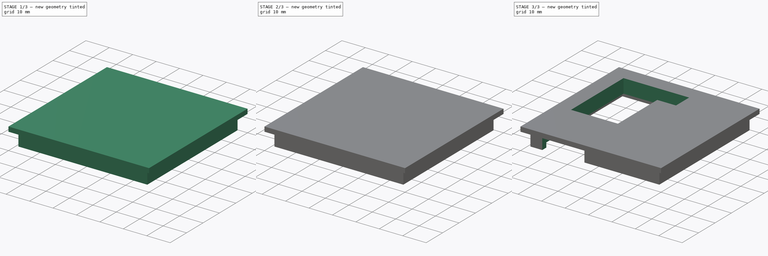
[diagram: build sequence overview — one tinted view per stage of 3, left to right]
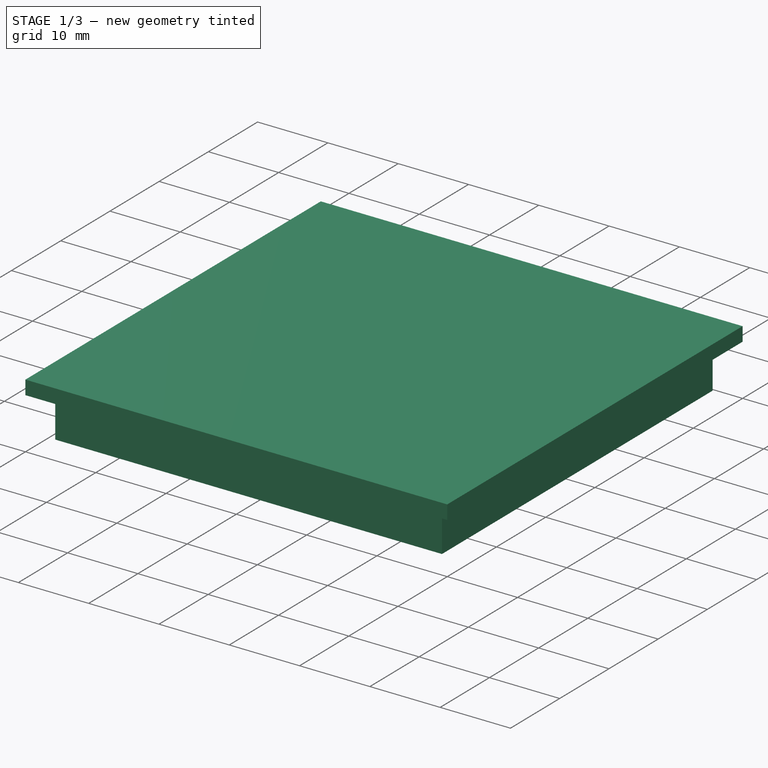
[diagram: stage 1 of 3 — iso view after this stage's code; geometry added in this stage tinted green]
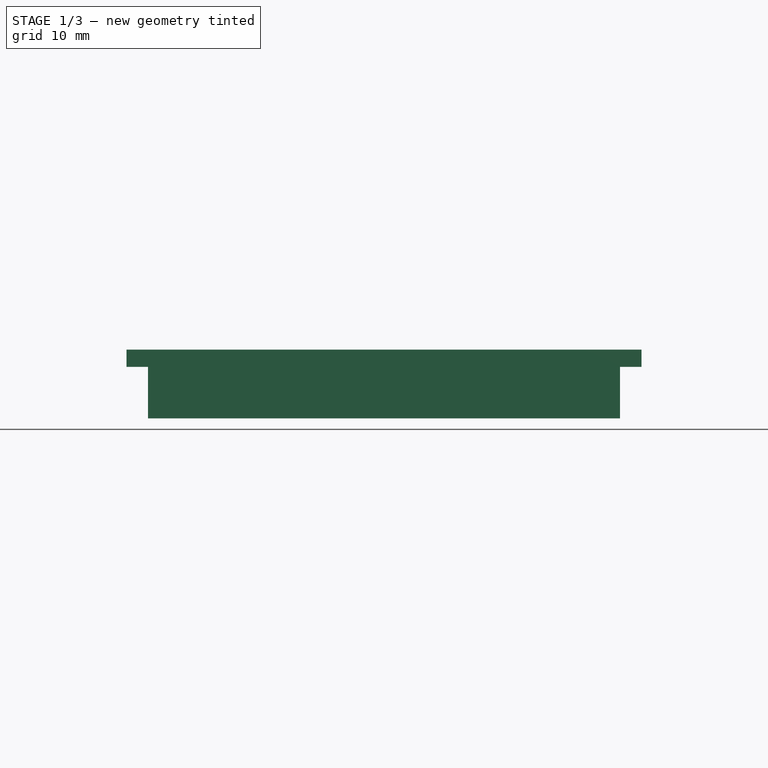
[diagram: stage 1 of 3 — front view after this stage's code; geometry added in this stage tinted green]
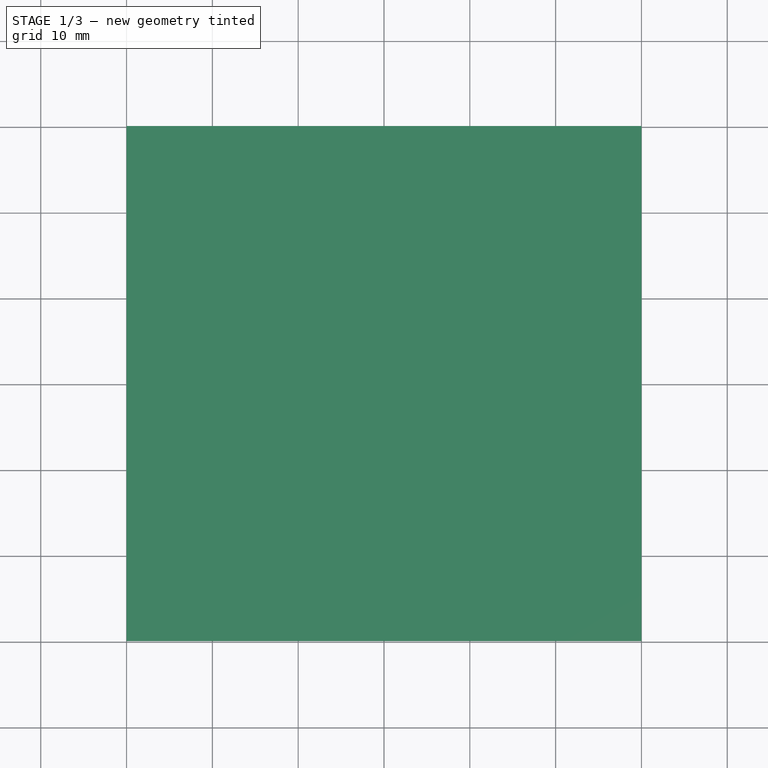
[diagram: stage 1 of 3 — top view after this stage's code; geometry added in this stage tinted green]
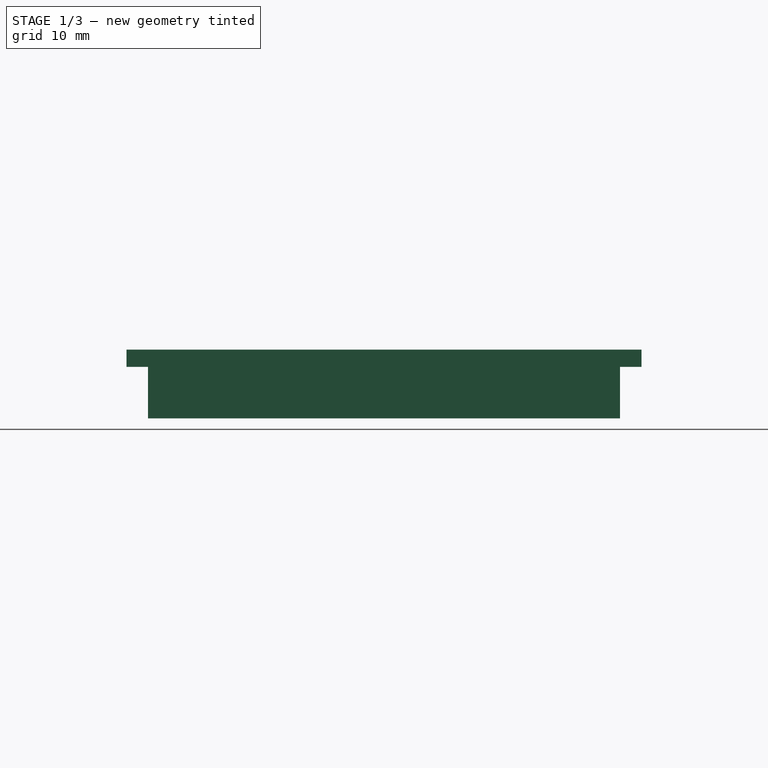
[diagram: stage 1 of 3 — right view after this stage's code; geometry added in this stage tinted green]
FCSTD DOCUMENT  (FreeCAD 0.20R29410 (Git))
Label: Sensor_Verteiler_V10
License: All rights reserved
LicenseURL: http://en.wikipedia.org/wiki/All_rights_reserved
objects: Sketcher::SketchObject×6, PartDesign::Plane×4, PartDesign::Pocket×4, PartDesign::Pad×2, App::MeasureDistance×2, Spreadsheet::Sheet×1, PartDesign::Body×1
note: 23 computed .brp shape members not serialized (recipe doc carries the construction recipe); baked Part::Feature solids carry a one-line shape summary decoded from their .brp

FEATURE [Sketcher::SketchObject] Sketch
  FullyConstrained = true
  MapMode = 5
  Support = -> [XY_Plane]
  expr: Constraints[10] = <<Parameter>>.Oberteil_Breite_Komplett + <<Parameter>>.Oberteil_Rand_Komplett * 2
  expr: Constraints[9] = <<Parameter>>.Oberteil_Tiefe_Komplett + <<Parameter>>.Oberteil_Rand_Komplett * 2
  sketch-geometry (4):
    g0: LineSegment StartX=0 StartY=0 StartZ=0 EndX=60 EndY=0 EndZ=0
    g1: LineSegment StartX=60 StartY=0 StartZ=0 EndX=60 EndY=60 EndZ=0
    g2: LineSegment StartX=60 StartY=60 StartZ=0 EndX=0 EndY=60 EndZ=0
    g3: LineSegment StartX=0 StartY=60 StartZ=0 EndX=0 EndY=0 EndZ=0
  constraints (11):
    c: Coincident(g0,g1)
    c: Coincident(g1,g2)
    c: Coincident(g2,g3)
    c: Coincident(g3,g0)
    c: Horizontal(g0)
    c: Horizontal(g2)
    c: Vertical(g1)
    c: Vertical(g3)
    c: Coincident(g0,g-1)
    c: DistanceY(g0,g1) = 60
    c: DistanceX(g2,g1) = 60
FEATURE [Spreadsheet::Sheet] Spreadsheet  label="Parameter"
  cells = A1=Breite in mm; B1(Oberteil_Breite_Komplett)=50; A2=Tiefe in mm; B2(Oberteil_Tiefe_Komplett)=50; A3=Rand; B3(Oberteil_Rand_Komplett)=5
FEATURE [PartDesign::Pad] Pad  label="Oberteil"
  Direction = (0,0,1)
  Length = 2
  Length2 = 10
  Profile = -> Sketch
  ReferenceAxis = -> Sketch [N_Axis]
  Type = 0
FEATURE [PartDesign::Plane] DatumPlane  label="Unterseite"
  Length = 60
  MapMode = 5
  Placement = pos=(0,0,0) rot=(1,0,0;3.14159rad)
  ResizeMode = 0
  Support = -> [Pad]
  Width = 60
FEATURE [Sketcher::SketchObject] Sketch001
  FullyConstrained = true
  MapMode = 5
  Placement = pos=(0,0,0) rot=(1,0,0;3.14159rad)
  Support = -> [DatumPlane]
  expr: Constraints[10] = <<Parameter>>.Oberteil_Breite_Komplett + <<Parameter>>.Oberteil_Rand_Komplett
  expr: Constraints[11] = <<Parameter>>.Oberteil_Tiefe_Komplett + <<Parameter>>.Oberteil_Rand_Komplett
  expr: Constraints[8] = <<Parameter>>.Oberteil_Rand_Komplett / 2
  expr: Constraints[9] = <<Parameter>>.Oberteil_Rand_Komplett / 2
  sketch-geometry (4):
    g0: LineSegment StartX=2.5 StartY=-2.5 StartZ=0 EndX=57.5 EndY=-2.5 EndZ=0
    g1: LineSegment StartX=57.5 StartY=-2.5 StartZ=0 EndX=57.5 EndY=-57.5 EndZ=0
    g2: LineSegment StartX=57.5 StartY=-57.5 StartZ=0 EndX=2.5 EndY=-57.5 EndZ=0
    g3: LineSegment StartX=2.5 StartY=-57.5 StartZ=0 EndX=2.5 EndY=-2.5 EndZ=0
  constraints (12):
    c: Coincident(g0,g1)
    c: Coincident(g1,g2)
    c: Coincident(g2,g3)
    c: Coincident(g3,g0)
    c: Horizontal(g0)
    c: Horizontal(g2)
    c: Vertical(g1)
    c: Vertical(g3)
    c: DistanceY(g0,g-1) = 2.5
    c: DistanceX(g-1,g0) = 2.5
    c: DistanceX(g0,g0) = 55
    c: DistanceY(g1,g0) = 55
FEATURE [PartDesign::Pad] Pad001  label="Rand"
  BaseFeature = -> Pad
  Direction = (0,0,-1)
  Length = 6
  Length2 = 10
  Profile = -> Sketch001
  ReferenceAxis = -> Sketch001 [N_Axis]
  Type = 0
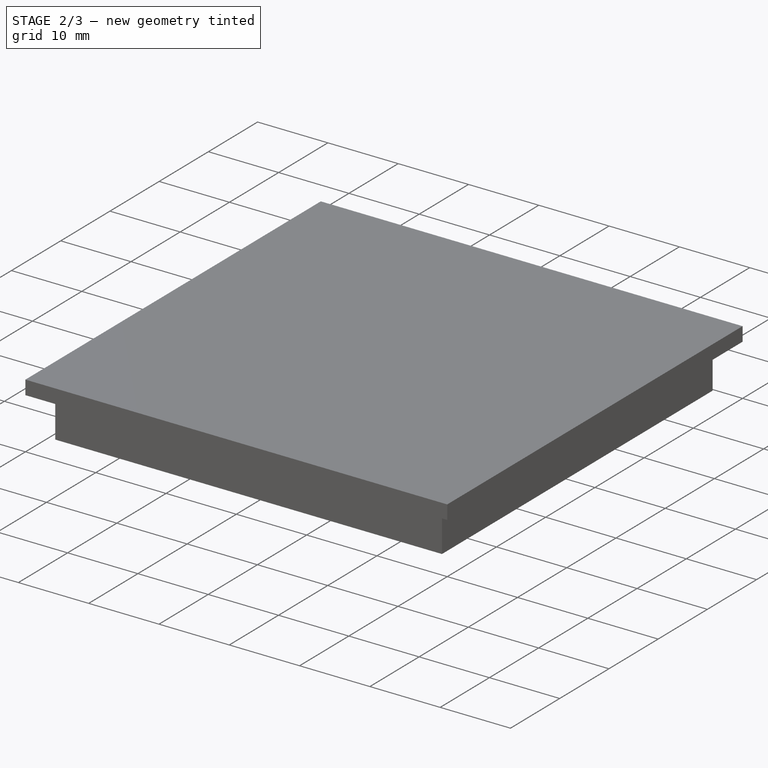
[diagram: stage 2 of 3 — iso view after this stage's code; geometry added in this stage tinted green]
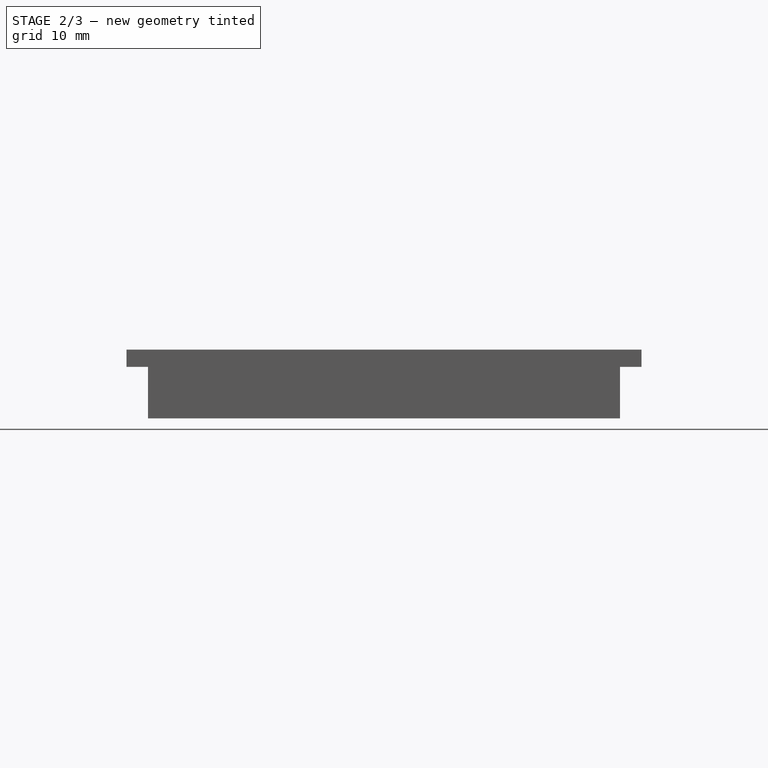
[diagram: stage 2 of 3 — front view after this stage's code; geometry added in this stage tinted green]
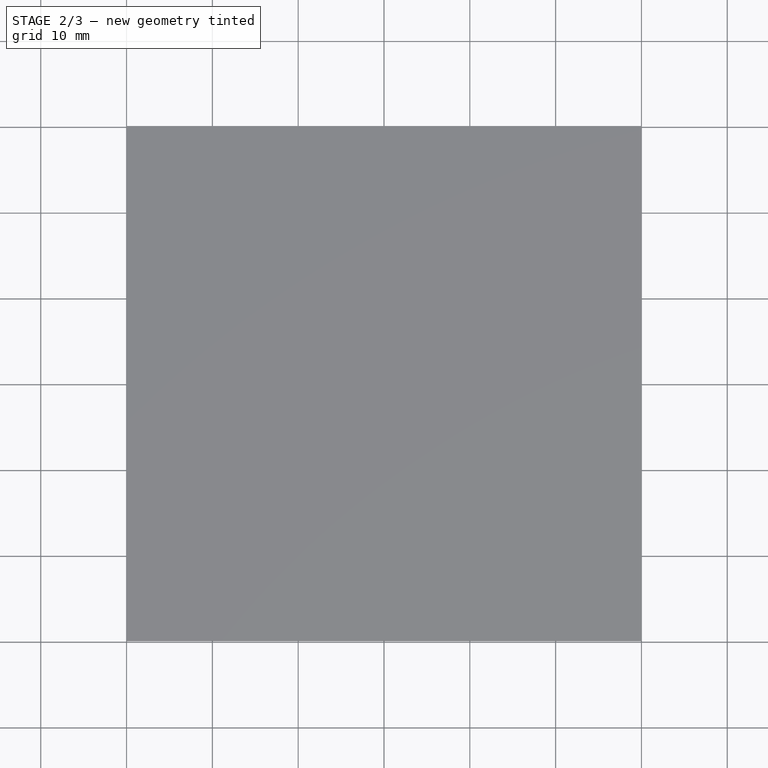
[diagram: stage 2 of 3 — top view after this stage's code; geometry added in this stage tinted green]
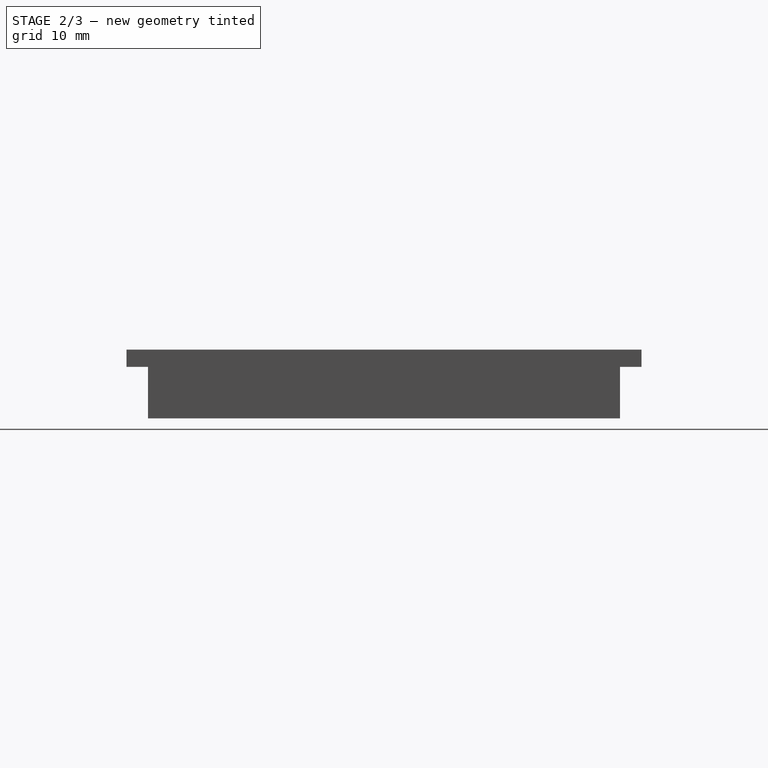
[diagram: stage 2 of 3 — right view after this stage's code; geometry added in this stage tinted green]
FEATURE [PartDesign::Plane] DatumPlane001  label="Unterseite Rand"
  Length = 60
  MapMode = 5
  Placement = pos=(0,0,-6) rot=(1,0,0;3.14159rad)
  ResizeMode = 0
  Support = -> [Pad001]
  Width = 60
FEATURE [Sketcher::SketchObject] Sketch002
  FullyConstrained = true
  MapMode = 5
  Placement = pos=(0,0,-6) rot=(1,0,0;3.14159rad)
  Support = -> [DatumPlane001]
  expr: Constraints[10] = <<Parameter>>.Oberteil_Breite_Komplett
  expr: Constraints[11] = <<Parameter>>.Oberteil_Tiefe_Komplett
  expr: Constraints[8] = <<Parameter>>.Oberteil_Rand_Komplett
  expr: Constraints[9] = <<Parameter>>.Oberteil_Rand_Komplett
  sketch-geometry (4):
    g0: LineSegment StartX=5 StartY=-5 StartZ=0 EndX=55 EndY=-5 EndZ=0
    g1: LineSegment StartX=55 StartY=-5 StartZ=0 EndX=55 EndY=-55 EndZ=0
    g2: LineSegment StartX=55 StartY=-55 StartZ=0 EndX=5 EndY=-55 EndZ=0
    g3: LineSegment StartX=5 StartY=-55 StartZ=0 EndX=5 EndY=-5 EndZ=0
  constraints (12):
    c: Coincident(g0,g1)
    c: Coincident(g1,g2)
    c: Coincident(g2,g3)
    c: Coincident(g3,g0)
    c: Horizontal(g0)
    c: Horizontal(g2)
    c: Vertical(g1)
    c: Vertical(g3)
    c: DistanceX(g-1,g0) = 5
    c: DistanceY(g0,g-1) = 5
    c: DistanceX(g2,g1) = 50
    c: DistanceY(g1,g0) = 50
FEATURE [PartDesign::Pocket] Pocket  label="Innenseite"
  BaseFeature = -> Pad001
  Direction = (0,0,1)
  Length = 2
  Length2 = 5
  Profile = -> Sketch002
  ReferenceAxis = -> Sketch002 [N_Axis]
  Type = 0
FEATURE [PartDesign::Plane] DatumPlane002  label="Deckel oben"
  Length = 60
  MapMode = 5
  Placement = pos=(0,0,2) rot=(0,0,1;0rad)
  ResizeMode = 0
  Support = -> [Pocket]
  Width = 60
FEATURE [Sketcher::SketchObject] Sketch003
  FullyConstrained = true
  MapMode = 5
  Placement = pos=(0,0,2) rot=(0,0,1;0rad)
  Support = -> [Pocket]
  expr: Constraints[12] = <<Parameter>>.Oberteil_Tiefe_Komplett + 2 * <<Parameter>>.Oberteil_Rand_Komplett
  expr: Constraints[13] = <<Parameter>>.Oberteil_Breite_Komplett + 2 * <<Parameter>>.Oberteil_Rand_Komplett
  expr: Constraints[14] = <<Parameter>>.Oberteil_Rand_Komplett + 1.54
  expr: Constraints[15] = <<Parameter>>.Oberteil_Rand_Komplett + 1.54
  sketch-geometry (11):
    g0: LineSegment StartX=6.54 StartY=53.46 StartZ=0 EndX=34.54 EndY=53.46 EndZ=0
    g1: LineSegment StartX=34.54 StartY=53.46 StartZ=0 EndX=34.54 EndY=45.46 EndZ=0
    g2: LineSegment StartX=0 StartY=0 StartZ=0 EndX=60 EndY=0 EndZ=0
    g3: LineSegment StartX=60 StartY=0 StartZ=0 EndX=60 EndY=60 EndZ=0
    g4: LineSegment StartX=60 StartY=60 StartZ=0 EndX=0 EndY=60 EndZ=0
    g5: LineSegment StartX=0 StartY=60 StartZ=0 EndX=0 EndY=0 EndZ=0
    g6: LineSegment StartX=26.54 StartY=45.46 StartZ=0 EndX=26.54 EndY=21.46 EndZ=0
    g7: LineSegment StartX=26.54 StartY=21.46 StartZ=0 EndX=6.54 EndY=21.46 EndZ=0
    g8: LineSegment StartX=6.54 StartY=53.46 StartZ=0 EndX=6.54 EndY=3.46 EndZ=0
    g9: LineSegment StartX=26.54 StartY=45.46 StartZ=0 EndX=34.54 EndY=45.46 EndZ=0
    g10: LineSegment StartX=6.54 StartY=53.46 StartZ=0 EndX=6.54 EndY=21.46 EndZ=0
  constraints (32):
    c: Coincident(g0,g1)
    c: Horizontal(g0)
    c: Vertical(g1)
    c: Coincident(g2,g3)
    c: Coincident(g3,g4)
    c: Coincident(g4,g5)
    c: Coincident(g5,g2)
    c: Horizontal(g2)
    c: Horizontal(g4)
    c: Vertical(g3)
    c: Vertical(g5)
    c: Coincident(g2,g-1)
    c: DistanceY(g2,g4) = 60
    c: DistanceX(g4,g3) = 60
    c: DistanceX(g4,g0) = 6.54
    c: DistanceY(g0,g4) = 6.54
    c: DistanceX(g0,g0) = 28
    c: DistanceY(g1,g0) = 8
    c: Coincident(g6,g7)
    c: Horizontal(g7)
    c: Vertical(g6)
    c: DistanceY(g6,g6) = 24
    c: DistanceX(g7,g6) = 20
    c: Coincident(g8,g0)
    c: Vertical(g8)
    c: DistanceY(g8,g8) = 50
    c: Coincident(g9,g6)
    c: Coincident(g9,g1)
    c: Horizontal(g9)
    c: Coincident(g10,g0)
    c: Coincident(g10,g7)
    c: Vertical(g10)
FEATURE [Sketcher::SketchObject] Sketch004
  FullyConstrained = true
  MapMode = 5
  Placement = pos=(0,0,-6) rot=(1,0,0;3.14159rad)
  Support = -> [DatumPlane001]
  expr: Constraints[10] = <<Parameter>>.Oberteil_Rand_Komplett / 2
  expr: Constraints[9] = <<Parameter>>.Oberteil_Rand_Komplett
  sketch-geometry (4):
    g0: LineSegment StartX=7.54 StartY=-2.5 StartZ=0 EndX=25.54 EndY=-2.5 EndZ=0
    g1: LineSegment StartX=25.54 StartY=-2.5 StartZ=0 EndX=25.54 EndY=-7.5 EndZ=0
    g2: LineSegment StartX=25.54 StartY=-7.5 StartZ=0 EndX=7.54 EndY=-7.5 EndZ=0
    g3: LineSegment StartX=7.54 StartY=-7.5 StartZ=0 EndX=7.54 EndY=-2.5 EndZ=0
  constraints (12):
    c: Coincident(g0,g1)
    c: Coincident(g1,g2)
    c: Coincident(g2,g3)
    c: Coincident(g3,g0)
    c: Horizontal(g0)
    c: Horizontal(g2)
    c: Vertical(g1)
    c: Vertical(g3)
    c: DistanceX(g0,g0) = 18
    c: DistanceY(g1,g1) = 5
    c: DistanceY(g0,g-1) = 2.5
    c: DistanceX(g-1,g0) = 7.54
FEATURE [PartDesign::Plane] DatumPlane003  label="Oberfläche innerrer Rand"
  Length = 60
  MapMode = 5
  Placement = pos=(0,0,-4) rot=(1,0,0;3.14159rad)
  ResizeMode = 0
  Support = -> [Pocket]
  Width = 60
FEATURE [Sketcher::SketchObject] Sketch005
  FullyConstrained = true
  MapMode = 5
  Placement = pos=(0,0,-4) rot=(1,0,0;3.14159rad)
  Support = -> [DatumPlane003]
  sketch-geometry (4):
    g0: LineSegment StartX=7 StartY=-7 StartZ=0 EndX=53 EndY=-7 EndZ=0
    g1: LineSegment StartX=53 StartY=-7 StartZ=0 EndX=53 EndY=-53 EndZ=0
    g2: LineSegment StartX=53 StartY=-53 StartZ=0 EndX=7 EndY=-53 EndZ=0
    g3: LineSegment StartX=7 StartY=-53 StartZ=0 EndX=7 EndY=-7 EndZ=0
  constraints (12):
    c: Coincident(g0,g1)
    c: Coincident(g1,g2)
    c: Coincident(g2,g3)
    c: Coincident(g3,g0)
    c: Horizontal(g0)
    c: Horizontal(g2)
    c: Vertical(g1)
    c: Vertical(g3)
    c: DistanceX(g-1,g0) = 7
    c: DistanceY(g0,g-1) = 7
    c: DistanceY(g2,g0) = 46
    c: DistanceX(g2,g1) = 46
FEATURE [PartDesign::Pocket] Pocket003  label="Innenraum"
  BaseFeature = -> Pocket
  Direction = (0,0,1)
  Length = 5
  Length2 = 5
  Profile = -> Sketch005
  ReferenceAxis = -> Sketch005 [N_Axis]
  Type = 0
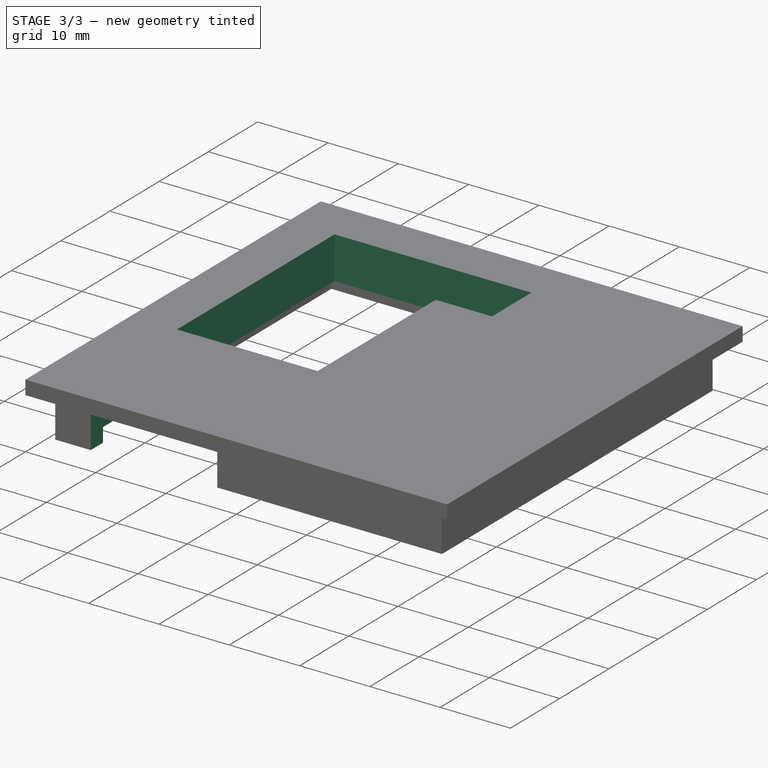
[diagram: stage 3 of 3 — iso view after this stage's code; geometry added in this stage tinted green]
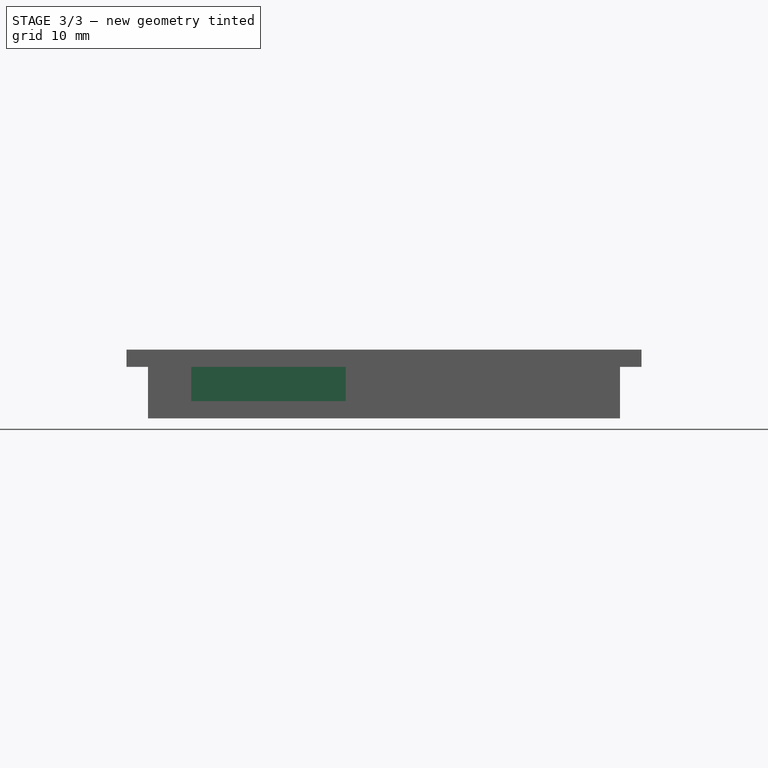
[diagram: stage 3 of 3 — front view after this stage's code; geometry added in this stage tinted green]
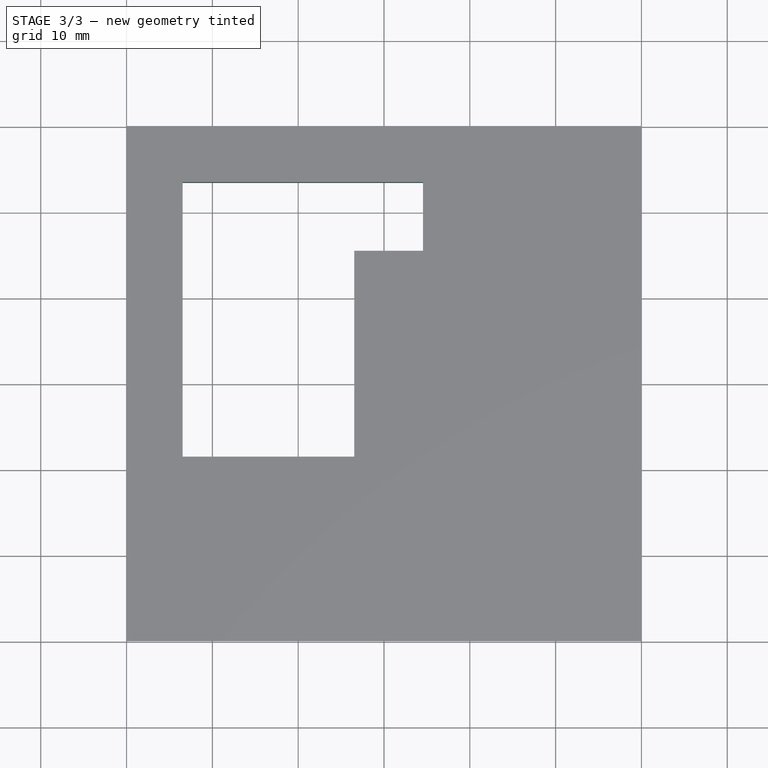
[diagram: stage 3 of 3 — top view after this stage's code; geometry added in this stage tinted green]
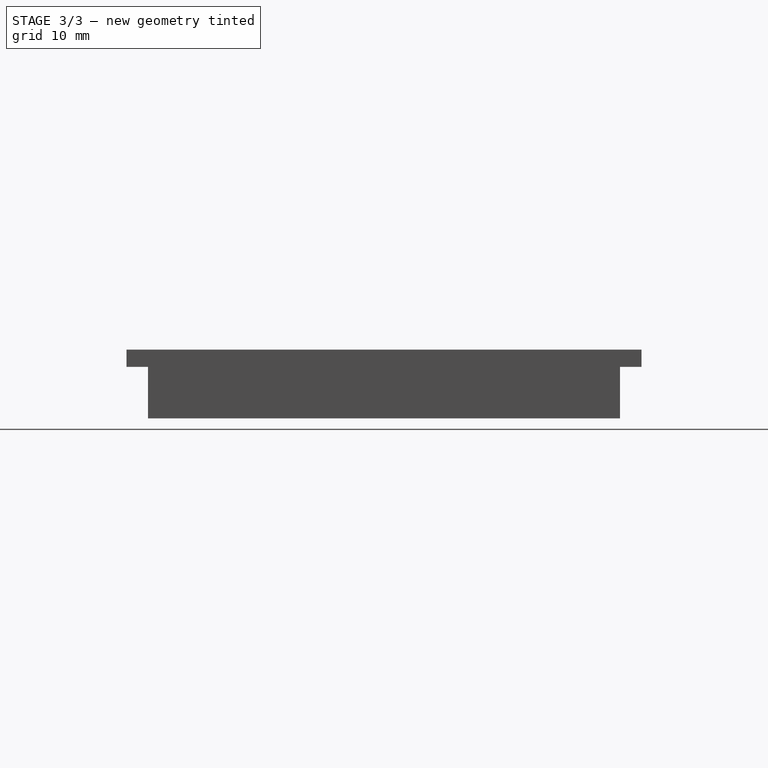
[diagram: stage 3 of 3 — right view after this stage's code; geometry added in this stage tinted green]
FEATURE [PartDesign::Pocket] Pocket001  label="Verbinder"
  BaseFeature = -> Pocket003
  Direction = (0,0,-1)
  Length = 5
  Length2 = 5
  Profile = -> Sketch003
  ReferenceAxis = -> Sketch003 [N_Axis]
  Type = 1
FEATURE [PartDesign::Pocket] Pocket002  label="Verbinder liegend"
  BaseFeature = -> Pocket001
  Direction = (0,0,1)
  Length = 7
  Length2 = 5
  Profile = -> Sketch004
  ReferenceAxis = -> Sketch004 [N_Axis]
  Type = 0
FEATURE [PartDesign::Body] Body
  Group = -> [Sketch,Pad,DatumPlane,Sketch001,Pad001,DatumPlane001,Sketch002,Pocket,Pocket003,DatumPlane003,DatumPlane002,Sketch003,Pocket001,Sketch004,Pocket002,Sketch005]
  Origin = -> Origin
  Tip = -> Pocket002
FEATURE [App::MeasureDistance] Distance  label="Distance: 52,511 mm"
  Distance = 52.5107
  P1 = (2.5,18.2503,-6)
  P2 = (55,17.1917,-6)
FEATURE [App::MeasureDistance] Distance001  label="Distance: 50,003 mm"
  Distance = 50.0028
  P1 = (5,6.07584,-6)
  P2 = (55,6.60516,-6)
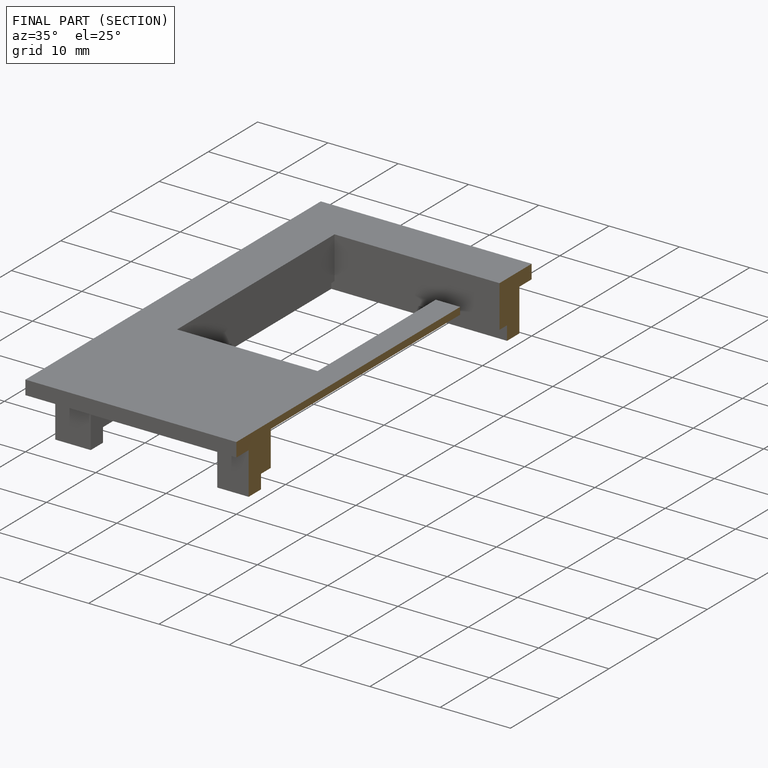
[diagram: finished part — half-section view (interior)]
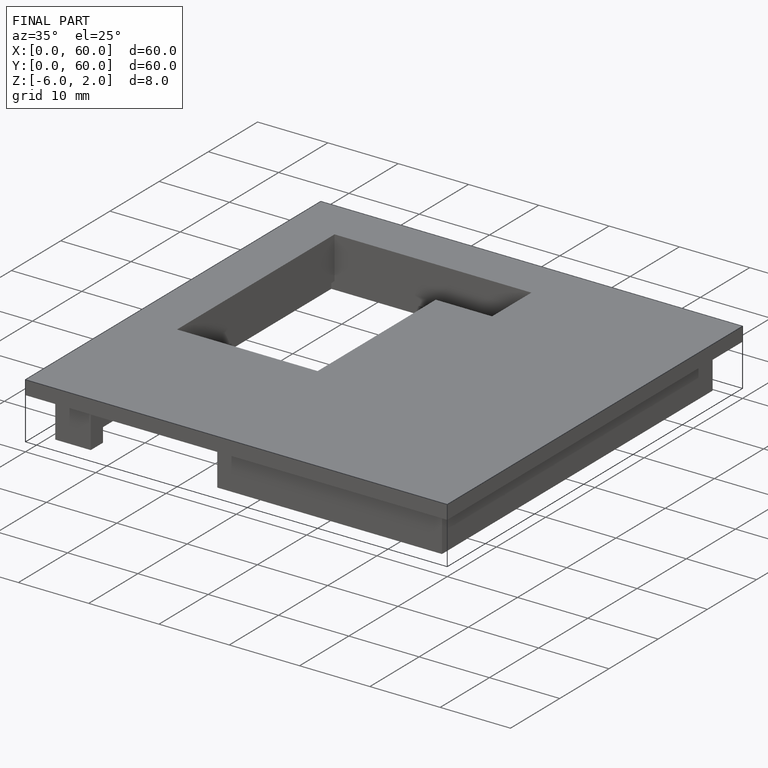
[diagram: finished part — iso view with bounding-box wireframe]
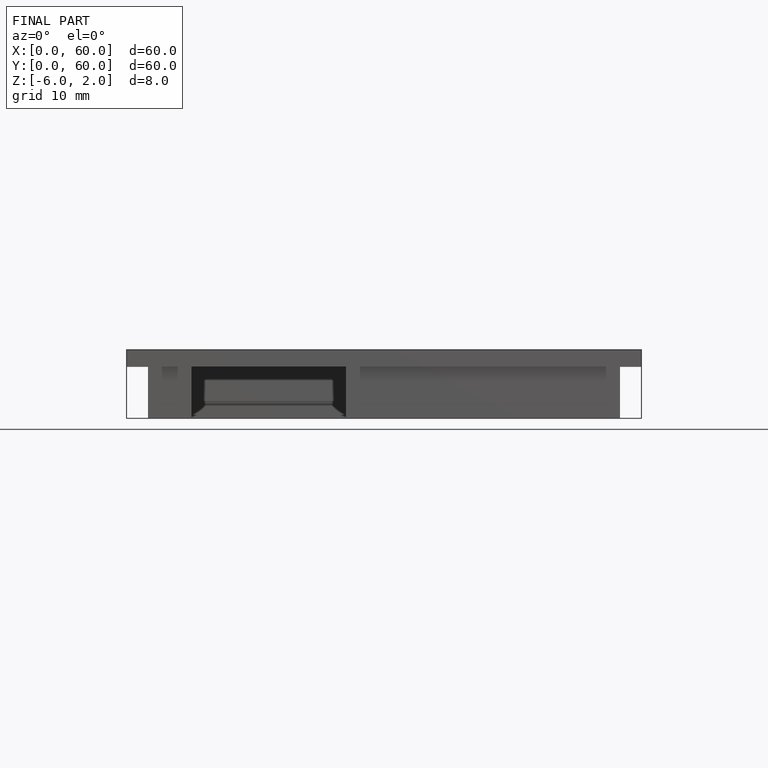
[diagram: finished part — front view with bounding-box wireframe]
